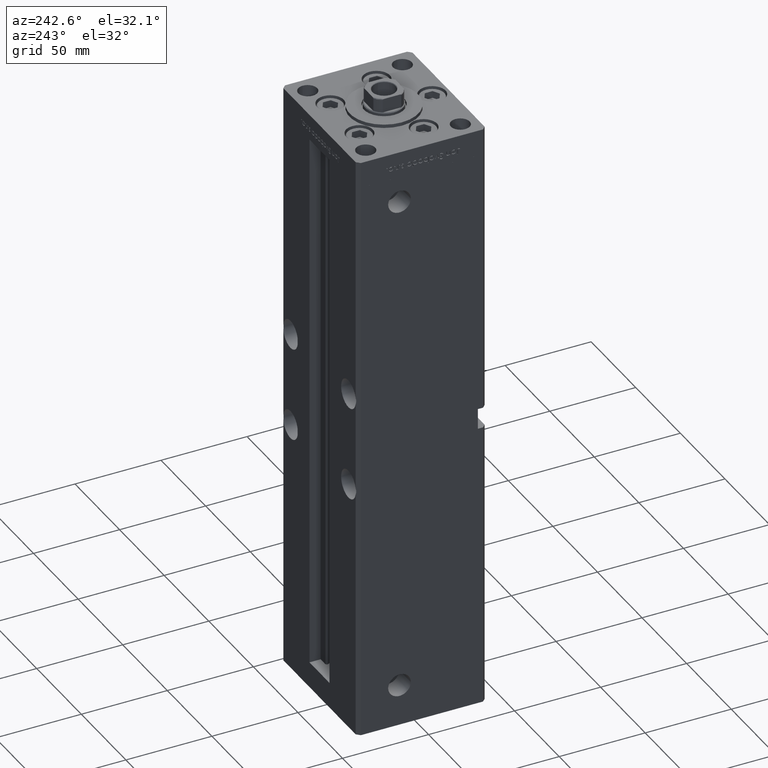
[diagram: clean part render]
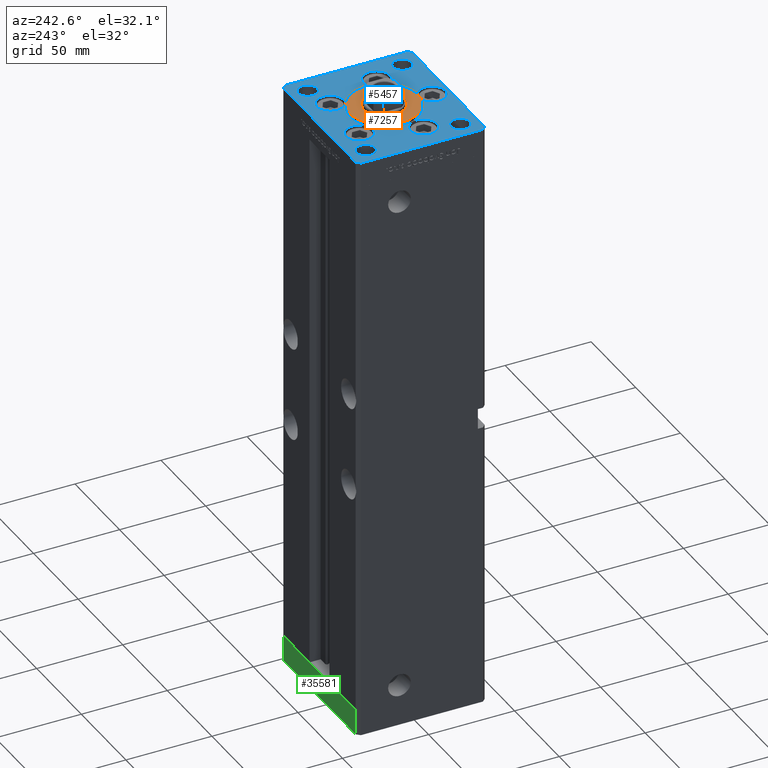
[diagram: same view with three faces highlighted in distinct colors, each labeled with its STEP entity id]
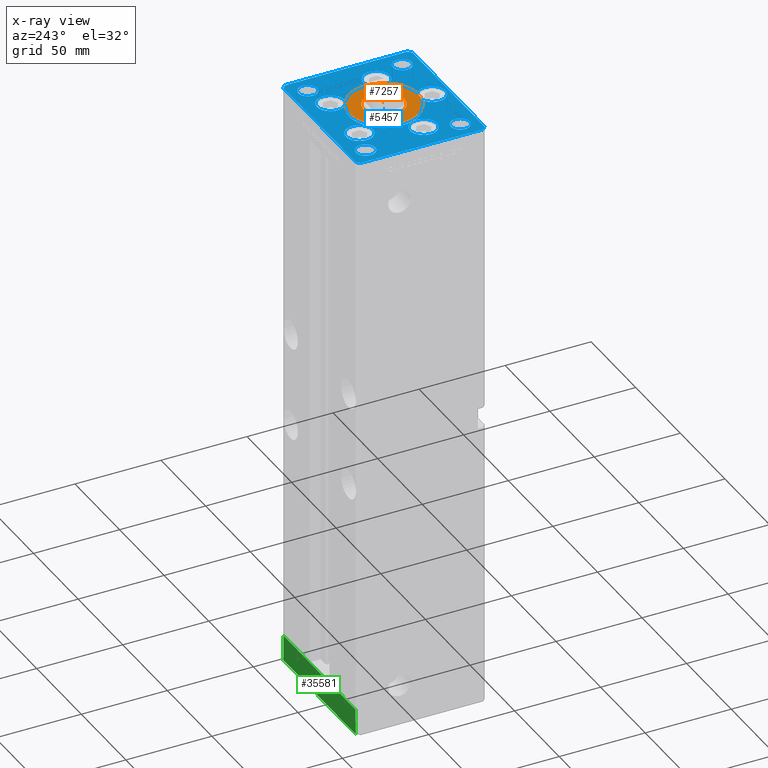
[diagram: x-ray of the same camera — body ghosted, the three highlighted faces saturated]
A machine part, auxiliary view with three faces highlighted in distinct colors.
The next image is the same camera in x-ray (body ghosted, the three faces saturated) — at least one of them is partly hidden behind the body in this view.
Their STEP definitions:

[orange] entity #7257 — the highlighted planar face has unit normal (0, 0, 1).
#439 = EDGE_LOOP ( 'NONE', ( #13040, #25808 ) ) ;
#1407 = DIRECTION ( 'NONE',  ( 1.000000000000000000, 0.000000000000000000, 0.000000000000000000 ) ) ;
#3390 = CIRCLE ( 'NONE', #29142, 20.00000000000000000 ) ;
#7178 = FACE_BOUND ( 'NONE', #439, .T. ) ;
#7257 = ADVANCED_FACE ( 'NONE', ( #7178, #52360 ), #19017, .T. ) ;
#7443 = VERTEX_POINT ( 'NONE', #50704 ) ;
#9207 = CARTESIAN_POINT ( 'NONE',  ( 0.000000000000000000, -6.938893903907228378E-15, 2.000000000000000000 ) ) ;
#12208 = DIRECTION ( 'NONE',  ( 0.000000000000000000, 0.000000000000000000, 1.000000000000000000 ) ) ;
#12733 = CARTESIAN_POINT ( 'NONE',  ( 0.000000000000000000, -6.938893903907228378E-15, 2.000000000000000000 ) ) ;
#13040 = ORIENTED_EDGE ( 'NONE', *, *, #43540, .F. ) ;
#14048 = EDGE_CURVE ( 'NONE', #7443, #18940, #37426, .T. ) ;
#17559 = DIRECTION ( 'NONE',  ( 1.000000000000000000, 0.000000000000000000, 0.000000000000000000 ) ) ;
#17713 = DIRECTION ( 'NONE',  ( 1.000000000000000000, 0.000000000000000000, 0.000000000000000000 ) ) ;
#17792 = DIRECTION ( 'NONE',  ( 0.000000000000000000, 0.000000000000000000, 1.000000000000000000 ) ) ;
#18940 = VERTEX_POINT ( 'NONE', #43437 ) ;
#19017 = PLANE ( 'NONE',  #46784 ) ;
#20409 = ORIENTED_EDGE ( 'NONE', *, *, #42771, .T. ) ;
#20552 = DIRECTION ( 'NONE',  ( 1.000000000000000000, 0.000000000000000000, 0.000000000000000000 ) ) ;
#21230 = DIRECTION ( 'NONE',  ( 0.000000000000000000, 0.000000000000000000, 1.000000000000000000 ) ) ;
#23031 = CARTESIAN_POINT ( 'NONE',  ( 20.00000000000000000, -4.489600305612522259E-15, 2.000000000000000000 ) ) ;
#24313 = EDGE_CURVE ( 'NONE', #38129, #32827, #3390, .T. ) ;
#24525 = AXIS2_PLACEMENT_3D ( 'NONE', #9207, #17792, #1407 ) ;
#24826 = DIRECTION ( 'NONE',  ( 0.000000000000000000, 0.000000000000000000, 1.000000000000000000 ) ) ;
#25808 = ORIENTED_EDGE ( 'NONE', *, *, #14048, .F. ) ;
#29142 = AXIS2_PLACEMENT_3D ( 'NONE', #38143, #21230, #17713 ) ;
#31275 = CIRCLE ( 'NONE', #51038, 20.00000000000000000 ) ;
#32646 = CARTESIAN_POINT ( 'NONE',  ( 0.000000000000000000, -6.938893903907228378E-15, 2.000000000000000000 ) ) ;
#32827 = VERTEX_POINT ( 'NONE', #23031 ) ;
#35600 = CIRCLE ( 'NONE', #51917, 11.75000000000000178 ) ;
#35743 = ORIENTED_EDGE ( 'NONE', *, *, #24313, .T. ) ;
#35953 = DIRECTION ( 'NONE',  ( 1.000000000000000000, 0.000000000000000000, -0.000000000000000000 ) ) ;
#37426 = CIRCLE ( 'NONE', #24525, 11.75000000000000178 ) ;
#38129 = VERTEX_POINT ( 'NONE', #45524 ) ;
#38143 = CARTESIAN_POINT ( 'NONE',  ( 0.000000000000000000, -6.938893903907228378E-15, 2.000000000000000000 ) ) ;
#39459 = DIRECTION ( 'NONE',  ( 0.000000000000000000, 0.000000000000000000, 1.000000000000000000 ) ) ;
#39980 = CARTESIAN_POINT ( 'NONE',  ( 0.000000000000000000, -6.938893903907228378E-15, 2.000000000000000000 ) ) ;
#42771 = EDGE_CURVE ( 'NONE', #32827, #38129, #31275, .T. ) ;
#43437 = CARTESIAN_POINT ( 'NONE',  ( 11.75000000000000178, -6.938893903907228378E-15, 2.000000000000000000 ) ) ;
#43540 = EDGE_CURVE ( 'NONE', #18940, #7443, #35600, .T. ) ;
#45524 = CARTESIAN_POINT ( 'NONE',  ( -20.00000000000000000, -6.938893903907228378E-15, 2.000000000000000000 ) ) ;
#46784 = AXIS2_PLACEMENT_3D ( 'NONE', #39980, #39459, #35953 ) ;
#47687 = EDGE_LOOP ( 'NONE', ( #35743, #20409 ) ) ;
#50704 = CARTESIAN_POINT ( 'NONE',  ( -11.75000000000000178, -5.499933914909088809E-15, 2.000000000000000000 ) ) ;
#51038 = AXIS2_PLACEMENT_3D ( 'NONE', #12733, #24826, #17559 ) ;
#51917 = AXIS2_PLACEMENT_3D ( 'NONE', #32646, #12208, #20552 ) ;
#52360 = FACE_OUTER_BOUND ( 'NONE', #47687, .T. ) ;

[blue] entity #5457 — the highlighted planar face has unit normal (0, 0, 1).
#40 = FACE_BOUND ( 'NONE', #2249, .T. ) ;
#124 = ORIENTED_EDGE ( 'NONE', *, *, #45544, .F. ) ;
#410 = CARTESIAN_POINT ( 'NONE',  ( -42.50000000000000711, 35.50000000000000000, 0.000000000000000000 ) ) ;
#465 = AXIS2_PLACEMENT_3D ( 'NONE', #39788, #27166, #12352 ) ;
#585 = DIRECTION ( 'NONE',  ( -1.000000000000000000, 0.000000000000000000, 0.000000000000000000 ) ) ;
#712 = AXIS2_PLACEMENT_3D ( 'NONE', #23743, #40137, #36369 ) ;
#798 = VERTEX_POINT ( 'NONE', #2408 ) ;
#846 = FACE_BOUND ( 'NONE', #36712, .T. ) ;
#1073 = EDGE_CURVE ( 'NONE', #28616, #14045, #7676, .T. ) ;
#1279 = DIRECTION ( 'NONE',  ( 0.000000000000000000, 0.000000000000000000, 1.000000000000000000 ) ) ;
#1286 = CIRCLE ( 'NONE', #22754, 7.750000000000000000 ) ;
#1520 = DIRECTION ( 'NONE',  ( -0.7071067811865536790, -0.7071067811865414665, 0.000000000000000000 ) ) ;
#1743 = EDGE_CURVE ( 'NONE', #24716, #32713, #48557, .T. ) ;
#1919 = EDGE_CURVE ( 'NONE', #29605, #34729, #17931, .T. ) ;
#2249 = EDGE_LOOP ( 'NONE', ( #15038, #7103 ) ) ;
#2408 = CARTESIAN_POINT ( 'NONE',  ( 38.00000000000000000, -27.50000000000000355, 0.000000000000000000 ) ) ;
#3641 = EDGE_CURVE ( 'NONE', #33626, #43827, #29500, .T. ) ;
#3999 = DIRECTION ( 'NONE',  ( 0.000000000000000000, 0.000000000000000000, 1.000000000000000000 ) ) ;
#4340 = ORIENTED_EDGE ( 'NONE', *, *, #18793, .T. ) ;
#4609 = FACE_BOUND ( 'NONE', #18939, .T. ) ;
#4882 = FACE_BOUND ( 'NONE', #41823, .T. ) ;
#5072 = DIRECTION ( 'NONE',  ( 1.000000000000000000, 0.000000000000000000, 0.000000000000000000 ) ) ;
#5292 = CARTESIAN_POINT ( 'NONE',  ( -40.50000000000000000, 37.49999999999997158, 0.000000000000000000 ) ) ;
#5457 = ADVANCED_FACE ( 'NONE', ( #4882, #36857, #17233, #49759, #21270, #33632, #41153, #846, #40, #16422, #4609 ), #32829, .T. ) ;
#5748 = EDGE_CURVE ( 'NONE', #13191, #42154, #9751, .T. ) ;
#5812 = LINE ( 'NONE', #5292, #20986 ) ;
#6132 = DIRECTION ( 'NONE',  ( 1.000000000000000000, 0.000000000000000000, 0.000000000000000000 ) ) ;
#6346 = EDGE_CURVE ( 'NONE', #20613, #44995, #32171, .T. ) ;
#7076 = DIRECTION ( 'NONE',  ( -0.000000000000000000, -0.000000000000000000, -1.000000000000000000 ) ) ;
#7103 = ORIENTED_EDGE ( 'NONE', *, *, #13022, .F. ) ;
#7506 = EDGE_CURVE ( 'NONE', #40112, #28086, #1286, .T. ) ;
#7676 = CIRCLE ( 'NONE', #10256, 7.750000000000000000 ) ;
#7711 = ORIENTED_EDGE ( 'NONE', *, *, #44071, .T. ) ;
#8105 = AXIS2_PLACEMENT_3D ( 'NONE', #10687, #42948, #6132 ) ;
#8155 = VECTOR ( 'NONE', #50389, 1000.000000000000000 ) ;
#8225 = EDGE_LOOP ( 'NONE', ( #52532, #4340 ) ) ;
#8265 = CARTESIAN_POINT ( 'NONE',  ( -16.32291334290544071, 22.74999999999999289, 0.000000000000000000 ) ) ;
#8278 = DIRECTION ( 'NONE',  ( 1.000000000000000000, 0.000000000000000000, 0.000000000000000000 ) ) ;
#8634 = DIRECTION ( 'NONE',  ( -0.000000000000000000, -0.000000000000000000, -1.000000000000000000 ) ) ;
#8696 = ORIENTED_EDGE ( 'NONE', *, *, #30925, .T. ) ;
#9282 = ORIENTED_EDGE ( 'NONE', *, *, #37725, .F. ) ;
#9546 = DIRECTION ( 'NONE',  ( 0.000000000000000000, 0.000000000000000000, 1.000000000000000000 ) ) ;
#9618 = DIRECTION ( 'NONE',  ( 0.000000000000000000, 0.000000000000000000, 1.000000000000000000 ) ) ;
#9648 = DIRECTION ( 'NONE',  ( 0.000000000000000000, 0.000000000000000000, 1.000000000000000000 ) ) ;
#9719 = VECTOR ( 'NONE', #46426, 1000.000000000000000 ) ;
#9751 = LINE ( 'NONE', #50877, #47585 ) ;
#9780 = AXIS2_PLACEMENT_3D ( 'NONE', #10750, #34952, #22845 ) ;
#9811 = AXIS2_PLACEMENT_3D ( 'NONE', #38115, #45917, #5072 ) ;
#9822 = CARTESIAN_POINT ( 'NONE',  ( 24.07291334290544071, 22.74999999999999289, 0.000000000000000000 ) ) ;
#10219 = CARTESIAN_POINT ( 'NONE',  ( 8.572913342905442491, 22.74999999999999289, 0.000000000000000000 ) ) ;
#10256 = AXIS2_PLACEMENT_3D ( 'NONE', #8265, #12570, #21175 ) ;
#10298 = ORIENTED_EDGE ( 'NONE', *, *, #17097, .T. ) ;
#10499 = VERTEX_POINT ( 'NONE', #52568 ) ;
#10645 = DIRECTION ( 'NONE',  ( 0.7071067811865474617, 0.7071067811865474617, 0.000000000000000000 ) ) ;
#10650 = DIRECTION ( 'NONE',  ( 0.000000000000000000, 0.000000000000000000, 1.000000000000000000 ) ) ;
#10687 = CARTESIAN_POINT ( 'NONE',  ( -26.39865316429777664, -9.333333333333330373, 0.000000000000000000 ) ) ;
#10750 = CARTESIAN_POINT ( 'NONE',  ( 0.000000000000000000, -28.00000000000000000, 0.000000000000000000 ) ) ;
#10860 = CARTESIAN_POINT ( 'NONE',  ( 32.50000000000000000, -27.50000000000000355, 0.000000000000000000 ) ) ;
#10922 = CARTESIAN_POINT ( 'NONE',  ( 16.32291334290544071, 22.74999999999999289, 0.000000000000000000 ) ) ;
#11053 = ORIENTED_EDGE ( 'NONE', *, *, #12681, .F. ) ;
#11698 = CIRCLE ( 'NONE', #52067, 5.499999999999998224 ) ;
#11699 = LINE ( 'NONE', #42307, #8155 ) ;
#12049 = DIRECTION ( 'NONE',  ( 1.000000000000000000, 0.000000000000000000, 0.000000000000000000 ) ) ;
#12131 = CARTESIAN_POINT ( 'NONE',  ( 32.50000000000000000, -27.50000000000000355, 0.000000000000000000 ) ) ;
#12352 = DIRECTION ( 'NONE',  ( 1.000000000000000000, 0.000000000000000000, 0.000000000000000000 ) ) ;
#12570 = DIRECTION ( 'NONE',  ( 0.000000000000000000, 0.000000000000000000, 1.000000000000000000 ) ) ;
#12596 = CARTESIAN_POINT ( 'NONE',  ( -40.50000000000000711, -37.50000000000003553, 0.000000000000000000 ) ) ;
#12635 = CIRCLE ( 'NONE', #19500, 5.499999999999998224 ) ;
#12642 = CARTESIAN_POINT ( 'NONE',  ( -18.64865316429777664, -9.333333333333330373, 0.000000000000000000 ) ) ;
#12681 = EDGE_CURVE ( 'NONE', #51432, #48745, #16773, .T. ) ;
#13022 = EDGE_CURVE ( 'NONE', #32713, #24716, #47776, .T. ) ;
#13080 = CARTESIAN_POINT ( 'NONE',  ( 26.39865316429777664, -9.333333333333330373, 0.000000000000000000 ) ) ;
#13191 = VERTEX_POINT ( 'NONE', #15597 ) ;
#13209 = ORIENTED_EDGE ( 'NONE', *, *, #52853, .T. ) ;
#13355 = CIRCLE ( 'NONE', #20226, 7.750000000000000000 ) ;
#13437 = CARTESIAN_POINT ( 'NONE',  ( -16.32291334290544071, 22.74999999999999289, 0.000000000000000000 ) ) ;
#13595 = ORIENTED_EDGE ( 'NONE', *, *, #48265, .T. ) ;
#14045 = VERTEX_POINT ( 'NONE', #34190 ) ;
#14187 = AXIS2_PLACEMENT_3D ( 'NONE', #19857, #3999, #12049 ) ;
#14416 = CIRCLE ( 'NONE', #712, 7.750000000000000000 ) ;
#14459 = EDGE_CURVE ( 'NONE', #14045, #28616, #42566, .T. ) ;
#14798 = CIRCLE ( 'NONE', #20825, 5.499999999999998224 ) ;
#15038 = ORIENTED_EDGE ( 'NONE', *, *, #1743, .F. ) ;
#15209 = DIRECTION ( 'NONE',  ( 1.000000000000000000, 0.000000000000000000, 0.000000000000000000 ) ) ;
#15418 = CIRCLE ( 'NONE', #30061, 5.499999999999998224 ) ;
#15597 = CARTESIAN_POINT ( 'NONE',  ( -42.50000000000000000, -35.50000000000004263, 0.000000000000000000 ) ) ;
#15686 = CARTESIAN_POINT ( 'NONE',  ( 42.50000000000001421, 35.50000000000002132, 0.000000000000000000 ) ) ;
#15753 = CARTESIAN_POINT ( 'NONE',  ( 38.00000000000000000, 27.49999999999999645, 0.000000000000000000 ) ) ;
#16351 = ORIENTED_EDGE ( 'NONE', *, *, #25884, .T. ) ;
#16422 = FACE_OUTER_BOUND ( 'NONE', #46827, .T. ) ;
#16685 = DIRECTION ( 'NONE',  ( -1.000000000000000000, 0.000000000000000000, 0.000000000000000000 ) ) ;
#16773 = CIRCLE ( 'NONE', #45212, 20.00000000000000000 ) ;
#17097 = EDGE_CURVE ( 'NONE', #42154, #38621, #38811, .T. ) ;
#17233 = FACE_BOUND ( 'NONE', #51218, .T. ) ;
#17623 = CARTESIAN_POINT ( 'NONE',  ( -20.00000000000000000, -6.938893903907228378E-15, 0.000000000000000000 ) ) ;
#17931 = LINE ( 'NONE', #30045, #9719 ) ;
#18477 = DIRECTION ( 'NONE',  ( -1.000000000000000000, -4.283267841918041508E-16, 0.000000000000000000 ) ) ;
#18503 = DIRECTION ( 'NONE',  ( 1.000000000000000000, 0.000000000000000000, 0.000000000000000000 ) ) ;
#18793 = EDGE_CURVE ( 'NONE', #10499, #47259, #12635, .T. ) ;
#18939 = EDGE_LOOP ( 'NONE', ( #16351, #13209 ) ) ;
#19004 = CARTESIAN_POINT ( 'NONE',  ( 40.50000000000000711, 37.50000000000000711, 0.000000000000000000 ) ) ;
#19500 = AXIS2_PLACEMENT_3D ( 'NONE', #30037, #49930, #49664 ) ;
#19727 = LINE ( 'NONE', #15686, #34790 ) ;
#19857 = CARTESIAN_POINT ( 'NONE',  ( 0.000000000000000000, -6.938893903907228378E-15, 0.000000000000000000 ) ) ;
#20144 = EDGE_CURVE ( 'NONE', #46623, #39374, #14416, .T. ) ;
#20226 = AXIS2_PLACEMENT_3D ( 'NONE', #25941, #42336, #25423 ) ;
#20317 = ORIENTED_EDGE ( 'NONE', *, *, #32078, .F. ) ;
#20476 = CARTESIAN_POINT ( 'NONE',  ( 7.750000000000000000, -28.00000000000000000, 0.000000000000000000 ) ) ;
#20613 = VERTEX_POINT ( 'NONE', #12642 ) ;
#20726 = EDGE_LOOP ( 'NONE', ( #44647, #46339 ) ) ;
#20732 = DIRECTION ( 'NONE',  ( -0.000000000000000000, 0.000000000000000000, 1.000000000000000000 ) ) ;
#20825 = AXIS2_PLACEMENT_3D ( 'NONE', #46699, #9618, #30319 ) ;
#20986 = VECTOR ( 'NONE', #1520, 1000.000000000000000 ) ;
#21175 = DIRECTION ( 'NONE',  ( 1.000000000000000000, 0.000000000000000000, 0.000000000000000000 ) ) ;
#21187 = CARTESIAN_POINT ( 'NONE',  ( -32.50000000000000000, -27.50000000000000355, 0.000000000000000000 ) ) ;
#21270 = FACE_BOUND ( 'NONE', #20726, .T. ) ;
#21934 = CARTESIAN_POINT ( 'NONE',  ( 27.00000000000000355, 27.49999999999999645, 0.000000000000000000 ) ) ;
#22053 = ORIENTED_EDGE ( 'NONE', *, *, #49857, .T. ) ;
#22182 = ORIENTED_EDGE ( 'NONE', *, *, #7506, .F. ) ;
#22754 = AXIS2_PLACEMENT_3D ( 'NONE', #13080, #29762, #33774 ) ;
#22845 = DIRECTION ( 'NONE',  ( 1.000000000000000000, 0.000000000000000000, 0.000000000000000000 ) ) ;
#23044 = LINE ( 'NONE', #19004, #44180 ) ;
#23743 = CARTESIAN_POINT ( 'NONE',  ( 0.000000000000000000, -28.00000000000000000, 0.000000000000000000 ) ) ;
#24047 = CARTESIAN_POINT ( 'NONE',  ( -34.14865316429777664, -9.333333333333328596, 0.000000000000000000 ) ) ;
#24097 = EDGE_LOOP ( 'NONE', ( #124, #22182 ) ) ;
#24577 = ORIENTED_EDGE ( 'NONE', *, *, #14459, .F. ) ;
#24716 = VERTEX_POINT ( 'NONE', #27493 ) ;
#25220 = CARTESIAN_POINT ( 'NONE',  ( -38.00000000000000000, -27.50000000000000355, 0.000000000000000000 ) ) ;
#25325 = DIRECTION ( 'NONE',  ( 0.000000000000000000, 0.000000000000000000, 1.000000000000000000 ) ) ;
#25423 = DIRECTION ( 'NONE',  ( 1.000000000000000000, 0.000000000000000000, 0.000000000000000000 ) ) ;
#25592 = CARTESIAN_POINT ( 'NONE',  ( -32.50000000000000000, -27.50000000000000355, 0.000000000000000000 ) ) ;
#25703 = CARTESIAN_POINT ( 'NONE',  ( -24.07291334290544071, 22.74999999999999289, 0.000000000000000000 ) ) ;
#25815 = ORIENTED_EDGE ( 'NONE', *, *, #6346, .F. ) ;
#25884 = EDGE_CURVE ( 'NONE', #798, #29018, #15418, .T. ) ;
#25941 = CARTESIAN_POINT ( 'NONE',  ( 16.32291334290544071, 22.74999999999999289, 0.000000000000000000 ) ) ;
#26036 = CARTESIAN_POINT ( 'NONE',  ( 0.000000000000000000, -6.938893903907228378E-15, 0.000000000000000000 ) ) ;
#26467 = CARTESIAN_POINT ( 'NONE',  ( -26.39865316429777664, -9.333333333333330373, 0.000000000000000000 ) ) ;
#27166 = DIRECTION ( 'NONE',  ( 0.000000000000000000, 0.000000000000000000, 1.000000000000000000 ) ) ;
#27493 = CARTESIAN_POINT ( 'NONE',  ( -27.00000000000000355, -27.50000000000000355, 0.000000000000000000 ) ) ;
#27637 = CARTESIAN_POINT ( 'NONE',  ( -40.50000000000000000, 37.49999999999997158, 0.000000000000000000 ) ) ;
#28058 = VECTOR ( 'NONE', #31016, 1000.000000000000000 ) ;
#28086 = VERTEX_POINT ( 'NONE', #50568 ) ;
#28616 = VERTEX_POINT ( 'NONE', #25703 ) ;
#29018 = VERTEX_POINT ( 'NONE', #39060 ) ;
#29500 = CIRCLE ( 'NONE', #49241, 7.750000000000000000 ) ;
#29540 = AXIS2_PLACEMENT_3D ( 'NONE', #49216, #20732, #45185 ) ;
#29605 = VERTEX_POINT ( 'NONE', #46400 ) ;
#29762 = DIRECTION ( 'NONE',  ( 0.000000000000000000, 0.000000000000000000, 1.000000000000000000 ) ) ;
#29844 = DIRECTION ( 'NONE',  ( 0.000000000000000000, 0.000000000000000000, 1.000000000000000000 ) ) ;
#30037 = CARTESIAN_POINT ( 'NONE',  ( -32.50000000000000000, 27.50000000000000711, 0.000000000000000000 ) ) ;
#30045 = CARTESIAN_POINT ( 'NONE',  ( 42.50000000000000711, -35.49999999999992895, 0.000000000000000000 ) ) ;
#30061 = AXIS2_PLACEMENT_3D ( 'NONE', #12131, #8634, #16685 ) ;
#30319 = DIRECTION ( 'NONE',  ( 1.000000000000000000, 0.000000000000000000, 0.000000000000000000 ) ) ;
#30658 = ORIENTED_EDGE ( 'NONE', *, *, #49296, .F. ) ;
#30925 = EDGE_CURVE ( 'NONE', #38621, #29605, #32350, .T. ) ;
#30962 = CARTESIAN_POINT ( 'NONE',  ( 20.00000000000000000, -4.489600305612522259E-15, 0.000000000000000000 ) ) ;
#30969 = AXIS2_PLACEMENT_3D ( 'NONE', #26467, #9546, #42855 ) ;
#31016 = DIRECTION ( 'NONE',  ( 1.000000000000000000, 1.370645709413773283E-15, 0.000000000000000000 ) ) ;
#31790 = ORIENTED_EDGE ( 'NONE', *, *, #1073, .F. ) ;
#32078 = EDGE_CURVE ( 'NONE', #44995, #20613, #48998, .T. ) ;
#32171 = CIRCLE ( 'NONE', #8105, 7.750000000000000000 ) ;
#32350 = LINE ( 'NONE', #52777, #40368 ) ;
#32408 = EDGE_LOOP ( 'NONE', ( #25815, #20317 ) ) ;
#32713 = VERTEX_POINT ( 'NONE', #25220 ) ;
#32829 = PLANE ( 'NONE',  #29540 ) ;
#33084 = DIRECTION ( 'NONE',  ( -0.7071067811865524577, 0.7071067811865426878, 0.000000000000000000 ) ) ;
#33626 = VERTEX_POINT ( 'NONE', #9822 ) ;
#33632 = FACE_BOUND ( 'NONE', #32408, .T. ) ;
#33774 = DIRECTION ( 'NONE',  ( 1.000000000000000000, 0.000000000000000000, 0.000000000000000000 ) ) ;
#33950 = CARTESIAN_POINT ( 'NONE',  ( 40.50000000000000711, 37.50000000000000711, 0.000000000000000000 ) ) ;
#34006 = CARTESIAN_POINT ( 'NONE',  ( -7.750000000000000000, -28.00000000000000000, 0.000000000000000000 ) ) ;
#34190 = CARTESIAN_POINT ( 'NONE',  ( -8.572913342905440715, 22.74999999999999289, 0.000000000000000000 ) ) ;
#34729 = VERTEX_POINT ( 'NONE', #36222 ) ;
#34790 = VECTOR ( 'NONE', #33084, 1000.000000000000000 ) ;
#34952 = DIRECTION ( 'NONE',  ( 0.000000000000000000, 0.000000000000000000, 1.000000000000000000 ) ) ;
#34965 = VERTEX_POINT ( 'NONE', #21934 ) ;
#35709 = CIRCLE ( 'NONE', #44298, 5.499999999999998224 ) ;
#35874 = ORIENTED_EDGE ( 'NONE', *, *, #42379, .F. ) ;
#36222 = CARTESIAN_POINT ( 'NONE',  ( 42.50000000000001421, 35.50000000000002132, 0.000000000000000000 ) ) ;
#36369 = DIRECTION ( 'NONE',  ( 1.000000000000000000, 0.000000000000000000, 0.000000000000000000 ) ) ;
#36414 = CIRCLE ( 'NONE', #9811, 5.499999999999998224 ) ;
#36489 = CIRCLE ( 'NONE', #465, 7.750000000000000000 ) ;
#36593 = ORIENTED_EDGE ( 'NONE', *, *, #1919, .T. ) ;
#36712 = EDGE_LOOP ( 'NONE', ( #9282, #35874 ) ) ;
#36857 = FACE_BOUND ( 'NONE', #49627, .T. ) ;
#37081 = VERTEX_POINT ( 'NONE', #33950 ) ;
#37365 = CIRCLE ( 'NONE', #14187, 20.00000000000000000 ) ;
#37396 = CARTESIAN_POINT ( 'NONE',  ( -32.50000000000000000, 27.50000000000000711, 0.000000000000000000 ) ) ;
#37667 = DIRECTION ( 'NONE',  ( -0.000000000000000000, -0.000000000000000000, -1.000000000000000000 ) ) ;
#37725 = EDGE_CURVE ( 'NONE', #50313, #34965, #14798, .T. ) ;
#38115 = CARTESIAN_POINT ( 'NONE',  ( 32.50000000000000000, 27.49999999999999645, 0.000000000000000000 ) ) ;
#38535 = VERTEX_POINT ( 'NONE', #410 ) ;
#38621 = VERTEX_POINT ( 'NONE', #40345 ) ;
#38790 = ORIENTED_EDGE ( 'NONE', *, *, #5748, .T. ) ;
#38811 = LINE ( 'NONE', #43096, #28058 ) ;
#39060 = CARTESIAN_POINT ( 'NONE',  ( 27.00000000000000355, -27.50000000000000355, 0.000000000000000000 ) ) ;
#39374 = VERTEX_POINT ( 'NONE', #34006 ) ;
#39788 = CARTESIAN_POINT ( 'NONE',  ( 26.39865316429777664, -9.333333333333330373, 0.000000000000000000 ) ) ;
#40112 = VERTEX_POINT ( 'NONE', #47684 ) ;
#40137 = DIRECTION ( 'NONE',  ( 0.000000000000000000, 0.000000000000000000, 1.000000000000000000 ) ) ;
#40166 = ORIENTED_EDGE ( 'NONE', *, *, #50428, .F. ) ;
#40345 = CARTESIAN_POINT ( 'NONE',  ( 40.50000000000001421, -37.49999999999992184, 0.000000000000000000 ) ) ;
#40368 = VECTOR ( 'NONE', #10645, 1000.000000000000114 ) ;
#40816 = EDGE_CURVE ( 'NONE', #39374, #46623, #45818, .T. ) ;
#41153 = FACE_BOUND ( 'NONE', #8225, .T. ) ;
#41494 = CARTESIAN_POINT ( 'NONE',  ( -27.00000000000000355, 27.50000000000000711, 0.000000000000000000 ) ) ;
#41823 = EDGE_LOOP ( 'NONE', ( #11053, #30658 ) ) ;
#41953 = ORIENTED_EDGE ( 'NONE', *, *, #45789, .T. ) ;
#42154 = VERTEX_POINT ( 'NONE', #12596 ) ;
#42307 = CARTESIAN_POINT ( 'NONE',  ( -42.50000000000000711, 35.50000000000000000, 0.000000000000000000 ) ) ;
#42336 = DIRECTION ( 'NONE',  ( 0.000000000000000000, 0.000000000000000000, 1.000000000000000000 ) ) ;
#42379 = EDGE_CURVE ( 'NONE', #34965, #50313, #36414, .T. ) ;
#42566 = CIRCLE ( 'NONE', #51167, 7.750000000000000000 ) ;
#42855 = DIRECTION ( 'NONE',  ( 1.000000000000000000, 0.000000000000000000, 0.000000000000000000 ) ) ;
#42948 = DIRECTION ( 'NONE',  ( 0.000000000000000000, 0.000000000000000000, 1.000000000000000000 ) ) ;
#43096 = CARTESIAN_POINT ( 'NONE',  ( -40.50000000000000711, -37.50000000000003553, 0.000000000000000000 ) ) ;
#43827 = VERTEX_POINT ( 'NONE', #10219 ) ;
#44071 = EDGE_CURVE ( 'NONE', #37081, #52751, #23044, .T. ) ;
#44180 = VECTOR ( 'NONE', #18477, 1000.000000000000000 ) ;
#44231 = AXIS2_PLACEMENT_3D ( 'NONE', #25592, #25325, #49520 ) ;
#44298 = AXIS2_PLACEMENT_3D ( 'NONE', #37396, #37667, #585 ) ;
#44647 = ORIENTED_EDGE ( 'NONE', *, *, #20144, .F. ) ;
#44995 = VERTEX_POINT ( 'NONE', #24047 ) ;
#45185 = DIRECTION ( 'NONE',  ( 1.000000000000000000, 0.000000000000000000, 0.000000000000000000 ) ) ;
#45212 = AXIS2_PLACEMENT_3D ( 'NONE', #26036, #9648, #18503 ) ;
#45544 = EDGE_CURVE ( 'NONE', #28086, #40112, #36489, .T. ) ;
#45789 = EDGE_CURVE ( 'NONE', #38535, #13191, #11699, .T. ) ;
#45818 = CIRCLE ( 'NONE', #9780, 7.750000000000000000 ) ;
#45917 = DIRECTION ( 'NONE',  ( 0.000000000000000000, 0.000000000000000000, 1.000000000000000000 ) ) ;
#46339 = ORIENTED_EDGE ( 'NONE', *, *, #40816, .F. ) ;
#46400 = CARTESIAN_POINT ( 'NONE',  ( 42.50000000000000711, -35.49999999999992895, 0.000000000000000000 ) ) ;
#46426 = DIRECTION ( 'NONE',  ( 9.773090005503145261E-17, 1.000000000000000000, 0.000000000000000000 ) ) ;
#46482 = DIRECTION ( 'NONE',  ( 1.000000000000000000, 0.000000000000000000, 0.000000000000000000 ) ) ;
#46623 = VERTEX_POINT ( 'NONE', #20476 ) ;
#46699 = CARTESIAN_POINT ( 'NONE',  ( 32.50000000000000000, 27.49999999999999645, 0.000000000000000000 ) ) ;
#46827 = EDGE_LOOP ( 'NONE', ( #38790, #10298, #8696, #36593, #22053, #7711, #13595, #41953 ) ) ;
#47259 = VERTEX_POINT ( 'NONE', #41494 ) ;
#47465 = AXIS2_PLACEMENT_3D ( 'NONE', #21187, #1279, #8278 ) ;
#47585 = VECTOR ( 'NONE', #51147, 1000.000000000000000 ) ;
#47684 = CARTESIAN_POINT ( 'NONE',  ( 18.64865316429777664, -9.333333333333328596, 0.000000000000000000 ) ) ;
#47776 = CIRCLE ( 'NONE', #44231, 5.499999999999998224 ) ;
#48265 = EDGE_CURVE ( 'NONE', #52751, #38535, #5812, .T. ) ;
#48557 = CIRCLE ( 'NONE', #47465, 5.499999999999998224 ) ;
#48745 = VERTEX_POINT ( 'NONE', #30962 ) ;
#48998 = CIRCLE ( 'NONE', #30969, 7.750000000000000000 ) ;
#49214 = ORIENTED_EDGE ( 'NONE', *, *, #3641, .F. ) ;
#49216 = CARTESIAN_POINT ( 'NONE',  ( 0.000000000000000000, 0.000000000000000000, 0.000000000000000000 ) ) ;
#49241 = AXIS2_PLACEMENT_3D ( 'NONE', #10922, #10650, #15209 ) ;
#49296 = EDGE_CURVE ( 'NONE', #48745, #51432, #37365, .T. ) ;
#49520 = DIRECTION ( 'NONE',  ( 1.000000000000000000, 0.000000000000000000, 0.000000000000000000 ) ) ;
#49627 = EDGE_LOOP ( 'NONE', ( #24577, #31790 ) ) ;
#49664 = DIRECTION ( 'NONE',  ( -1.000000000000000000, 0.000000000000000000, 0.000000000000000000 ) ) ;
#49759 = FACE_BOUND ( 'NONE', #24097, .T. ) ;
#49857 = EDGE_CURVE ( 'NONE', #34729, #37081, #19727, .T. ) ;
#49930 = DIRECTION ( 'NONE',  ( -0.000000000000000000, -0.000000000000000000, -1.000000000000000000 ) ) ;
#50313 = VERTEX_POINT ( 'NONE', #15753 ) ;
#50389 = DIRECTION ( 'NONE',  ( 9.773090005503134168E-17, -1.000000000000000000, 0.000000000000000000 ) ) ;
#50428 = EDGE_CURVE ( 'NONE', #43827, #33626, #13355, .T. ) ;
#50568 = CARTESIAN_POINT ( 'NONE',  ( 34.14865316429777664, -9.333333333333330373, 0.000000000000000000 ) ) ;
#50877 = CARTESIAN_POINT ( 'NONE',  ( -42.50000000000000000, -35.50000000000004263, 0.000000000000000000 ) ) ;
#51074 = EDGE_CURVE ( 'NONE', #47259, #10499, #35709, .T. ) ;
#51147 = DIRECTION ( 'NONE',  ( 0.7071067811865487940, -0.7071067811865463515, 0.000000000000000000 ) ) ;
#51167 = AXIS2_PLACEMENT_3D ( 'NONE', #13437, #29844, #46482 ) ;
#51189 = DIRECTION ( 'NONE',  ( -1.000000000000000000, 0.000000000000000000, 0.000000000000000000 ) ) ;
#51218 = EDGE_LOOP ( 'NONE', ( #49214, #40166 ) ) ;
#51432 = VERTEX_POINT ( 'NONE', #17623 ) ;
#52067 = AXIS2_PLACEMENT_3D ( 'NONE', #10860, #7076, #51189 ) ;
#52532 = ORIENTED_EDGE ( 'NONE', *, *, #51074, .T. ) ;
#52568 = CARTESIAN_POINT ( 'NONE',  ( -38.00000000000000000, 27.50000000000000711, 0.000000000000000000 ) ) ;
#52751 = VERTEX_POINT ( 'NONE', #27637 ) ;
#52777 = CARTESIAN_POINT ( 'NONE',  ( 40.50000000000001421, -37.49999999999992184, 0.000000000000000000 ) ) ;
#52853 = EDGE_CURVE ( 'NONE', #29018, #798, #11698, .T. ) ;

[green] entity #35581 — the highlighted planar face has unit normal (-0, 1, 0).
#468 = DIRECTION ( 'NONE',  ( -3.426614273534436165E-16, 1.000000000000000000, 0.000000000000000000 ) ) ;
#2521 = VECTOR ( 'NONE', #52802, 1000.000000000000000 ) ;
#2933 = ORIENTED_EDGE ( 'NONE', *, *, #3205, .T. ) ;
#3205 = EDGE_CURVE ( 'NONE', #33959, #16475, #18848, .T. ) ;
#5993 = CARTESIAN_POINT ( 'NONE',  ( 40.49999999999991473, 37.50000000000000711, -15.00000000000000000 ) ) ;
#8790 = PLANE ( 'NONE',  #39665 ) ;
#10255 = DIRECTION ( 'NONE',  ( -1.000000000000000000, -3.426614273534436165E-16, 0.000000000000000000 ) ) ;
#10294 = CARTESIAN_POINT ( 'NONE',  ( 40.49999999999991473, 37.50000000000000711, -15.00000000000000000 ) ) ;
#10660 = EDGE_CURVE ( 'NONE', #45537, #48895, #50120, .T. ) ;
#13573 = CARTESIAN_POINT ( 'NONE',  ( 40.49999999999991473, 37.50000000000000711, 0.000000000000000000 ) ) ;
#16058 = CARTESIAN_POINT ( 'NONE',  ( 40.49999999999991473, 37.50000000000000711, -15.00000000000000000 ) ) ;
#16475 = VERTEX_POINT ( 'NONE', #41177 ) ;
#18848 = LINE ( 'NONE', #31221, #23486 ) ;
#21124 = VECTOR ( 'NONE', #22154, 1000.000000000000000 ) ;
#22154 = DIRECTION ( 'NONE',  ( -1.000000000000000000, -3.426614273534436165E-16, 0.000000000000000000 ) ) ;
#22376 = DIRECTION ( 'NONE',  ( 0.000000000000000000, 0.000000000000000000, 1.000000000000000000 ) ) ;
#22665 = EDGE_CURVE ( 'NONE', #16475, #48895, #33166, .T. ) ;
#22906 = EDGE_CURVE ( 'NONE', #33959, #45537, #47103, .T. ) ;
#23486 = VECTOR ( 'NONE', #10255, 1000.000000000000000 ) ;
#31221 = CARTESIAN_POINT ( 'NONE',  ( 40.49999999999991473, 37.50000000000000711, -15.00000000000000000 ) ) ;
#32465 = DIRECTION ( 'NONE',  ( -1.000000000000000000, -3.426614273534436165E-16, 0.000000000000000000 ) ) ;
#32524 = ORIENTED_EDGE ( 'NONE', *, *, #22906, .F. ) ;
#33166 = LINE ( 'NONE', #48491, #2521 ) ;
#33400 = VECTOR ( 'NONE', #22376, 1000.000000000000000 ) ;
#33959 = VERTEX_POINT ( 'NONE', #10294 ) ;
#34617 = ORIENTED_EDGE ( 'NONE', *, *, #22665, .T. ) ;
#35581 = ADVANCED_FACE ( 'NONE', ( #53155 ), #8790, .T. ) ;
#36317 = ORIENTED_EDGE ( 'NONE', *, *, #10660, .F. ) ;
#38260 = EDGE_LOOP ( 'NONE', ( #36317, #32524, #2933, #34617 ) ) ;
#39665 = AXIS2_PLACEMENT_3D ( 'NONE', #16058, #468, #32465 ) ;
#40606 = CARTESIAN_POINT ( 'NONE',  ( -40.50000000000000711, 37.49999999999997868, 0.000000000000000000 ) ) ;
#41177 = CARTESIAN_POINT ( 'NONE',  ( -40.50000000000000711, 37.49999999999997868, -15.00000000000000000 ) ) ;
#45537 = VERTEX_POINT ( 'NONE', #47581 ) ;
#47103 = LINE ( 'NONE', #5993, #33400 ) ;
#47581 = CARTESIAN_POINT ( 'NONE',  ( 40.49999999999991473, 37.50000000000000711, 0.000000000000000000 ) ) ;
#48491 = CARTESIAN_POINT ( 'NONE',  ( -40.50000000000000711, 37.49999999999997868, -15.00000000000000000 ) ) ;
#48895 = VERTEX_POINT ( 'NONE', #40606 ) ;
#50120 = LINE ( 'NONE', #13573, #21124 ) ;
#52802 = DIRECTION ( 'NONE',  ( 0.000000000000000000, 0.000000000000000000, 1.000000000000000000 ) ) ;
#53155 = FACE_OUTER_BOUND ( 'NONE', #38260, .T. ) ;